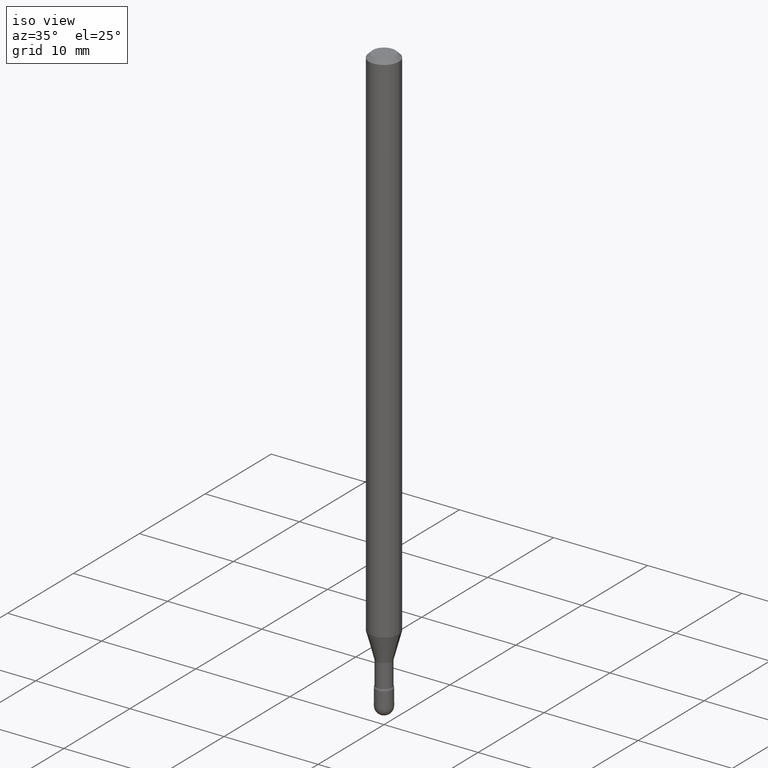
[diagram: clean part render]
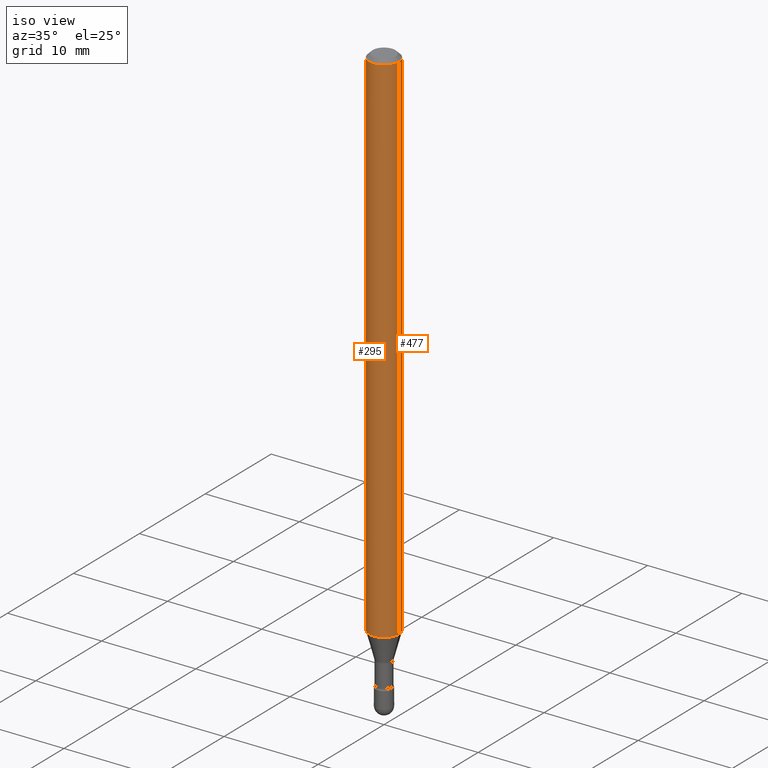
[diagram: same view with one multi-face feature highlighted, each face labeled with its STEP entity id]
A machine part, iso view. The highlighted faces form ONE feature: a constant-radius fillet chain: 2 tangent blend faces with common blend radius 1.5875 mm. The faces share edges in the B-rep.
Their STEP definitions:
[1] entity #477 (Cylinder):
#1 = DIRECTION ( 'NONE',  ( -2.445468806185136877E-29, 3.491481338843145188E-15, 1.000000000000000000 ) ) ;
#12 = DIRECTION ( 'NONE',  ( -2.445468806185136597E-29, 3.491481338843145583E-15, 1.000000000000000000 ) ) ;
#25 = EDGE_CURVE ( 'NONE', #305, #402, #470, .T. ) ;
#32 = ORIENTED_EDGE ( 'NONE', *, *, #462, .F. ) ;
#55 = CARTESIAN_POINT ( 'NONE',  ( 3.668203209277725232E-31, -5.237222008264747365E-17, -0.01500000000000008271 ) ) ;
#73 = VECTOR ( 'NONE', #377, 39.37007874015748143 ) ;
#100 = DIRECTION ( 'NONE',  ( -2.445468806185136597E-29, 3.491481338843145583E-15, 1.000000000000000000 ) ) ;
#149 = CYLINDRICAL_SURFACE ( 'NONE', #303, 0.06250000000000000000 ) ;
#193 = DIRECTION ( 'NONE',  ( -2.445468806185136597E-29, 3.491481338843145583E-15, 1.000000000000000000 ) ) ;
#225 = VECTOR ( 'NONE', #1, 39.37007874015748143 ) ;
#236 = CARTESIAN_POINT ( 'NONE',  ( -0.06250000000000000000, -3.386993324063092812E-15, -0.01500000000000008271 ) ) ;
#239 = DIRECTION ( 'NONE',  ( 1.000000000000000000, -6.982962677686266711E-15, 0.000000000000000000 ) ) ;
#240 = CARTESIAN_POINT ( 'NONE',  ( 5.329975796706934398E-29, -7.609792847743663382E-15, -2.179531296095961412 ) ) ;
#244 = CARTESIAN_POINT ( 'NONE',  ( 0.06250000000000000000, -8.046228015099055052E-15, -2.179531296095961412 ) ) ;
#247 = AXIS2_PLACEMENT_3D ( 'NONE', #240, #100, #326 ) ;
#249 = EDGE_CURVE ( 'NONE', #522, #402, #300, .T. ) ;
#258 = CARTESIAN_POINT ( 'NONE',  ( -0.06250000000000000000, 4.440892098500642925E-16, 4.780733988912429571E-16 ) ) ;
#277 = ORIENTED_EDGE ( 'NONE', *, *, #249, .T. ) ;
#299 = EDGE_LOOP ( 'NONE', ( #505, #277, #395, #32 ) ) ;
#300 = LINE ( 'NONE', #258, #225 ) ;
#303 = AXIS2_PLACEMENT_3D ( 'NONE', #367, #193, #325 ) ;
#305 = VERTEX_POINT ( 'NONE', #331 ) ;
#325 = DIRECTION ( 'NONE',  ( 1.000000000000000000, -6.982962677686266711E-15, 4.852736867747366207E-29 ) ) ;
#326 = DIRECTION ( 'NONE',  ( 1.000000000000000000, -6.982962677686262766E-15, 0.000000000000000000 ) ) ;
#327 = AXIS2_PLACEMENT_3D ( 'NONE', #55, #12, #239 ) ;
#331 = CARTESIAN_POINT ( 'NONE',  ( 0.06250000000000000000, -4.888073874380391431E-16, -0.01500000000000008271 ) ) ;
#361 = CIRCLE ( 'NONE', #247, 0.06250000000000000000 ) ;
#367 = CARTESIAN_POINT ( 'NONE',  ( -1.169113584055446105E-44, 1.669184350826100908E-30, 4.780733988912460139E-16 ) ) ;
#377 = DIRECTION ( 'NONE',  ( -2.445468806185136877E-29, 3.491481338843145188E-15, 1.000000000000000000 ) ) ;
#383 = EDGE_CURVE ( 'NONE', #479, #522, #361, .T. ) ;
#395 = ORIENTED_EDGE ( 'NONE', *, *, #25, .F. ) ;
#402 = VERTEX_POINT ( 'NONE', #236 ) ;
#408 = FACE_OUTER_BOUND ( 'NONE', #299, .T. ) ;
#414 = CARTESIAN_POINT ( 'NONE',  ( 0.06250000000000000000, -4.364351673553899931E-16, 4.780733988912490708E-16 ) ) ;
#461 = LINE ( 'NONE', #414, #73 ) ;
#462 = EDGE_CURVE ( 'NONE', #479, #305, #461, .T. ) ;
#469 = CARTESIAN_POINT ( 'NONE',  ( -0.06250000000000000000, -7.165703637893600766E-15, -2.179531296095961412 ) ) ;
#470 = CIRCLE ( 'NONE', #327, 0.06250000000000000000 ) ;
#477 = ADVANCED_FACE ( 'NONE', ( #408 ), #149, .T. ) ;
#479 = VERTEX_POINT ( 'NONE', #244 ) ;
#505 = ORIENTED_EDGE ( 'NONE', *, *, #383, .T. ) ;
#522 = VERTEX_POINT ( 'NONE', #469 ) ;
[2] entity #295 (Cylinder):
#1 = DIRECTION ( 'NONE',  ( -2.445468806185136877E-29, 3.491481338843145188E-15, 1.000000000000000000 ) ) ;
#22 = DIRECTION ( 'NONE',  ( 1.000000000000000000, -6.982962677686266711E-15, 4.852736867747366207E-29 ) ) ;
#23 = AXIS2_PLACEMENT_3D ( 'NONE', #229, #54, #447 ) ;
#24 = AXIS2_PLACEMENT_3D ( 'NONE', #418, #30, #354 ) ;
#26 = EDGE_CURVE ( 'NONE', #402, #305, #101, .T. ) ;
#30 = DIRECTION ( 'NONE',  ( -2.445468806185136597E-29, 3.491481338843145583E-15, 1.000000000000000000 ) ) ;
#36 = FACE_OUTER_BOUND ( 'NONE', #44, .T. ) ;
#44 = EDGE_LOOP ( 'NONE', ( #141, #250, #485, #96 ) ) ;
#54 = DIRECTION ( 'NONE',  ( -2.445468806185136597E-29, 3.491481338843145583E-15, 1.000000000000000000 ) ) ;
#73 = VECTOR ( 'NONE', #377, 39.37007874015748143 ) ;
#96 = ORIENTED_EDGE ( 'NONE', *, *, #26, .F. ) ;
#101 = CIRCLE ( 'NONE', #23, 0.06250000000000000000 ) ;
#141 = ORIENTED_EDGE ( 'NONE', *, *, #249, .F. ) ;
#174 = CARTESIAN_POINT ( 'NONE',  ( -1.169113584055446105E-44, 1.669184350826100908E-30, 4.780733988912460139E-16 ) ) ;
#212 = EDGE_CURVE ( 'NONE', #522, #479, #234, .T. ) ;
#225 = VECTOR ( 'NONE', #1, 39.37007874015748143 ) ;
#229 = CARTESIAN_POINT ( 'NONE',  ( 3.668203209277725232E-31, -5.237222008264747365E-17, -0.01500000000000008271 ) ) ;
#234 = CIRCLE ( 'NONE', #24, 0.06250000000000000000 ) ;
#236 = CARTESIAN_POINT ( 'NONE',  ( -0.06250000000000000000, -3.386993324063092812E-15, -0.01500000000000008271 ) ) ;
#244 = CARTESIAN_POINT ( 'NONE',  ( 0.06250000000000000000, -8.046228015099055052E-15, -2.179531296095961412 ) ) ;
#249 = EDGE_CURVE ( 'NONE', #522, #402, #300, .T. ) ;
#250 = ORIENTED_EDGE ( 'NONE', *, *, #212, .T. ) ;
#258 = CARTESIAN_POINT ( 'NONE',  ( -0.06250000000000000000, 4.440892098500642925E-16, 4.780733988912429571E-16 ) ) ;
#295 = ADVANCED_FACE ( 'NONE', ( #36 ), #562, .T. ) ;
#300 = LINE ( 'NONE', #258, #225 ) ;
#305 = VERTEX_POINT ( 'NONE', #331 ) ;
#331 = CARTESIAN_POINT ( 'NONE',  ( 0.06250000000000000000, -4.888073874380391431E-16, -0.01500000000000008271 ) ) ;
#350 = DIRECTION ( 'NONE',  ( -2.445468806185136597E-29, 3.491481338843145583E-15, 1.000000000000000000 ) ) ;
#354 = DIRECTION ( 'NONE',  ( 1.000000000000000000, -6.982962677686262766E-15, 0.000000000000000000 ) ) ;
#377 = DIRECTION ( 'NONE',  ( -2.445468806185136877E-29, 3.491481338843145188E-15, 1.000000000000000000 ) ) ;
#402 = VERTEX_POINT ( 'NONE', #236 ) ;
#414 = CARTESIAN_POINT ( 'NONE',  ( 0.06250000000000000000, -4.364351673553899931E-16, 4.780733988912490708E-16 ) ) ;
#418 = CARTESIAN_POINT ( 'NONE',  ( 5.329975796706934398E-29, -7.609792847743663382E-15, -2.179531296095961412 ) ) ;
#435 = AXIS2_PLACEMENT_3D ( 'NONE', #174, #350, #22 ) ;
#447 = DIRECTION ( 'NONE',  ( 1.000000000000000000, -6.982962677686266711E-15, 0.000000000000000000 ) ) ;
#461 = LINE ( 'NONE', #414, #73 ) ;
#462 = EDGE_CURVE ( 'NONE', #479, #305, #461, .T. ) ;
#469 = CARTESIAN_POINT ( 'NONE',  ( -0.06250000000000000000, -7.165703637893600766E-15, -2.179531296095961412 ) ) ;
#479 = VERTEX_POINT ( 'NONE', #244 ) ;
#485 = ORIENTED_EDGE ( 'NONE', *, *, #462, .T. ) ;
#522 = VERTEX_POINT ( 'NONE', #469 ) ;
#562 = CYLINDRICAL_SURFACE ( 'NONE', #435, 0.06250000000000000000 ) ;